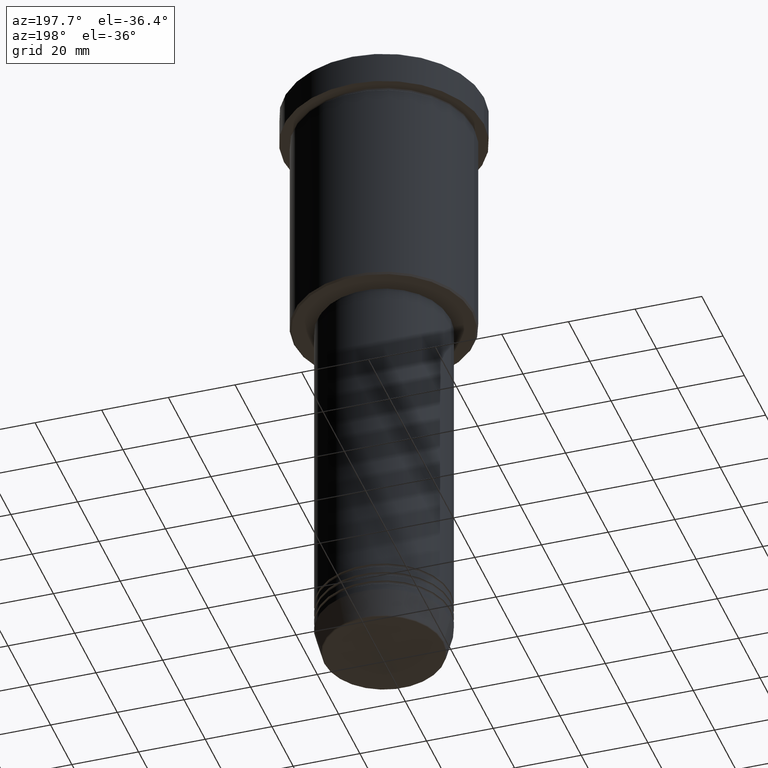
[diagram: clean part render]
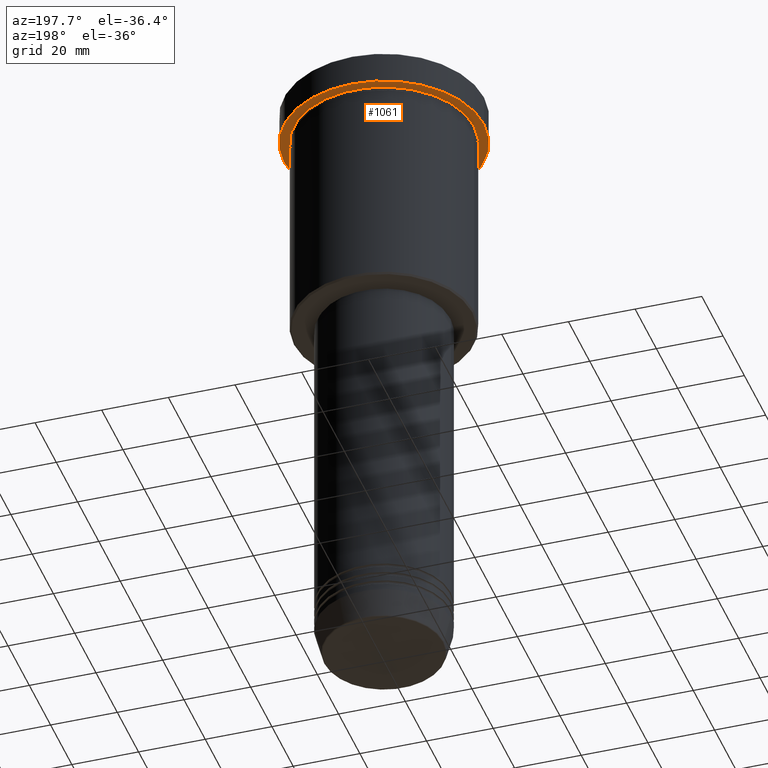
[diagram: same view with one face highlighted and labeled with its STEP entity id]
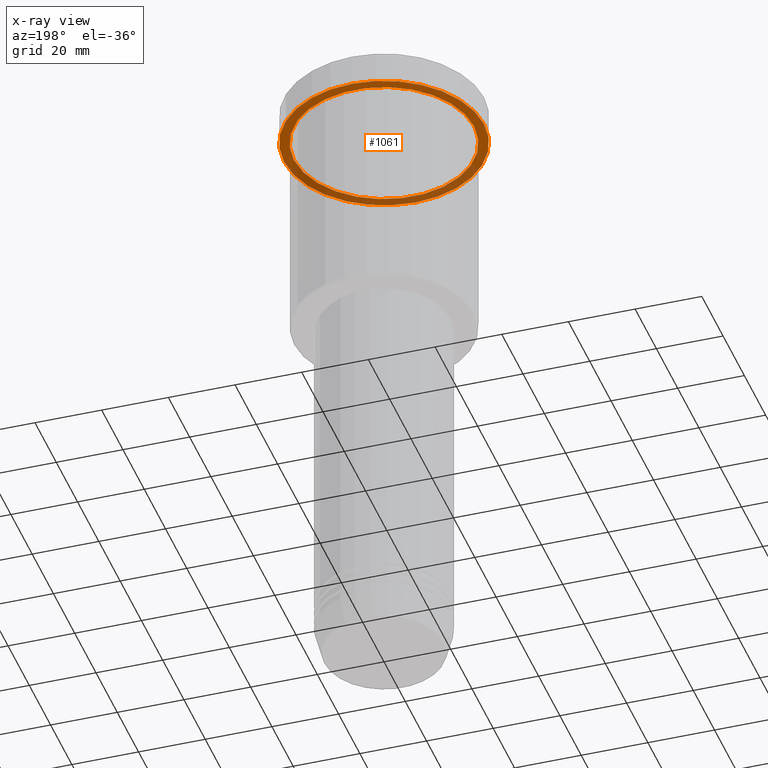
[diagram: x-ray of the same camera — body ghosted, the highlighted face saturated]
A machine part, auxiliary view. The second image highlights one B-rep face of the part: STEP entity #1061.
The next image is the same camera in x-ray: the body ghosted, the highlighted face saturated — about 38% of this face is hidden behind the body in this view.
In plain terms, the highlighted planar face has unit normal (0, 0, -1).
Its self-contained STEP definition (entity closure, byte-faithful):
#28 = ORIENTED_EDGE ( 'NONE', *, *, #402, .T. ) ;
#56 = VERTEX_POINT ( 'NONE', #462 ) ;
#60 = ORIENTED_EDGE ( 'NONE', *, *, #880, .F. ) ;
#84 = CIRCLE ( 'NONE', #1024, 27.00000000000000355 ) ;
#89 = CARTESIAN_POINT ( 'NONE',  ( -30.00000000000000000, 3.673940397442059178E-15, -9.999999999999992895 ) ) ;
#91 = VERTEX_POINT ( 'NONE', #735 ) ;
#113 = VERTEX_POINT ( 'NONE', #147 ) ;
#118 = DIRECTION ( 'NONE',  ( -0.000000000000000000, -0.000000000000000000, 1.000000000000000000 ) ) ;
#147 = CARTESIAN_POINT ( 'NONE',  ( -27.00000000000000355, 0.000000000000000000, -9.999999999999992895 ) ) ;
#169 = AXIS2_PLACEMENT_3D ( 'NONE', #281, #371, #739 ) ;
#281 = CARTESIAN_POINT ( 'NONE',  ( 0.000000000000000000, 30.00000000000000000, -9.999999999999992895 ) ) ;
#308 = EDGE_LOOP ( 'NONE', ( #1067, #28 ) ) ;
#314 = AXIS2_PLACEMENT_3D ( 'NONE', #331, #692, #1080 ) ;
#331 = CARTESIAN_POINT ( 'NONE',  ( 0.000000000000000000, 0.000000000000000000, -9.999999999999992895 ) ) ;
#352 = DIRECTION ( 'NONE',  ( -0.000000000000000000, -0.000000000000000000, 1.000000000000000000 ) ) ;
#371 = DIRECTION ( 'NONE',  ( 0.000000000000000000, 0.000000000000000000, -1.000000000000000000 ) ) ;
#374 = FACE_BOUND ( 'NONE', #308, .T. ) ;
#402 = EDGE_CURVE ( 'NONE', #91, #113, #84, .T. ) ;
#436 = EDGE_CURVE ( 'NONE', #56, #489, #626, .T. ) ;
#462 = CARTESIAN_POINT ( 'NONE',  ( 30.00000000000000000, 0.000000000000000000, -9.999999999999992895 ) ) ;
#489 = VERTEX_POINT ( 'NONE', #89 ) ;
#543 = DIRECTION ( 'NONE',  ( -1.000000000000000000, 0.000000000000000000, 0.000000000000000000 ) ) ;
#573 = CIRCLE ( 'NONE', #1146, 30.00000000000000000 ) ;
#596 = EDGE_CURVE ( 'NONE', #113, #91, #669, .T. ) ;
#609 = CARTESIAN_POINT ( 'NONE',  ( 0.000000000000000000, 0.000000000000000000, -9.999999999999992895 ) ) ;
#626 = CIRCLE ( 'NONE', #1110, 30.00000000000000000 ) ;
#631 = ORIENTED_EDGE ( 'NONE', *, *, #436, .F. ) ;
#669 = CIRCLE ( 'NONE', #314, 27.00000000000000355 ) ;
#692 = DIRECTION ( 'NONE',  ( -0.000000000000000000, -0.000000000000000000, 1.000000000000000000 ) ) ;
#735 = CARTESIAN_POINT ( 'NONE',  ( 27.00000000000000355, 3.306546357697854128E-15, -9.999999999999992895 ) ) ;
#739 = DIRECTION ( 'NONE',  ( -1.000000000000000000, 0.000000000000000000, -0.000000000000000000 ) ) ;
#746 = PLANE ( 'NONE',  #169 ) ;
#768 = DIRECTION ( 'NONE',  ( 1.000000000000000000, 0.000000000000000000, 0.000000000000000000 ) ) ;
#880 = EDGE_CURVE ( 'NONE', #489, #56, #573, .T. ) ;
#902 = EDGE_LOOP ( 'NONE', ( #631, #60 ) ) ;
#940 = CARTESIAN_POINT ( 'NONE',  ( 0.000000000000000000, 0.000000000000000000, -9.999999999999992895 ) ) ;
#1024 = AXIS2_PLACEMENT_3D ( 'NONE', #1180, #352, #543 ) ;
#1061 = ADVANCED_FACE ( 'NONE', ( #374, #1113 ), #746, .T. ) ;
#1067 = ORIENTED_EDGE ( 'NONE', *, *, #596, .T. ) ;
#1080 = DIRECTION ( 'NONE',  ( -1.000000000000000000, 0.000000000000000000, 0.000000000000000000 ) ) ;
#1082 = DIRECTION ( 'NONE',  ( 1.000000000000000000, 0.000000000000000000, 0.000000000000000000 ) ) ;
#1110 = AXIS2_PLACEMENT_3D ( 'NONE', #940, #118, #768 ) ;
#1113 = FACE_OUTER_BOUND ( 'NONE', #902, .T. ) ;
#1146 = AXIS2_PLACEMENT_3D ( 'NONE', #609, #1177, #1082 ) ;
#1177 = DIRECTION ( 'NONE',  ( -0.000000000000000000, -0.000000000000000000, 1.000000000000000000 ) ) ;
#1180 = CARTESIAN_POINT ( 'NONE',  ( 0.000000000000000000, 0.000000000000000000, -9.999999999999992895 ) ) ;